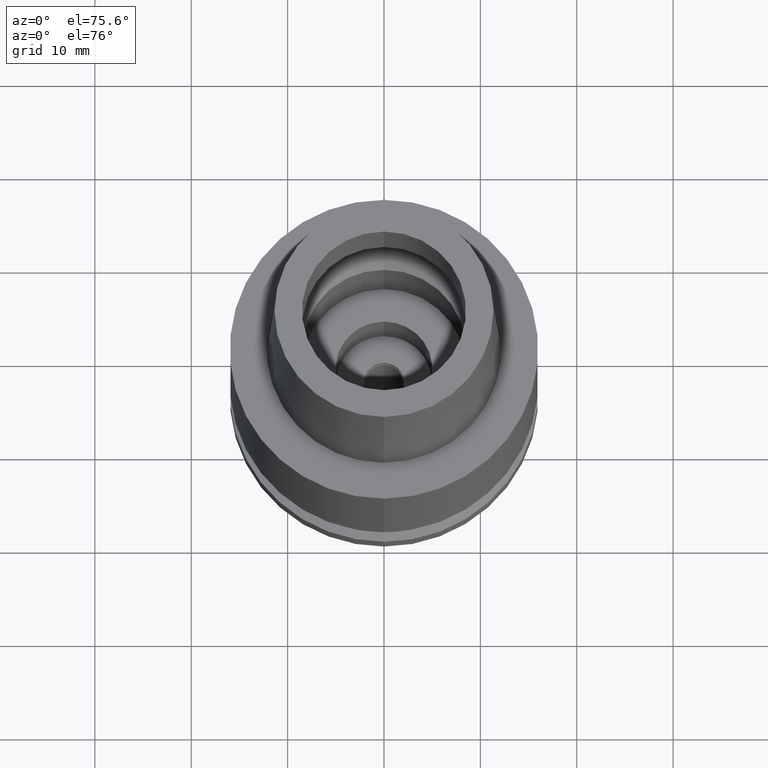
[diagram: clean part render]
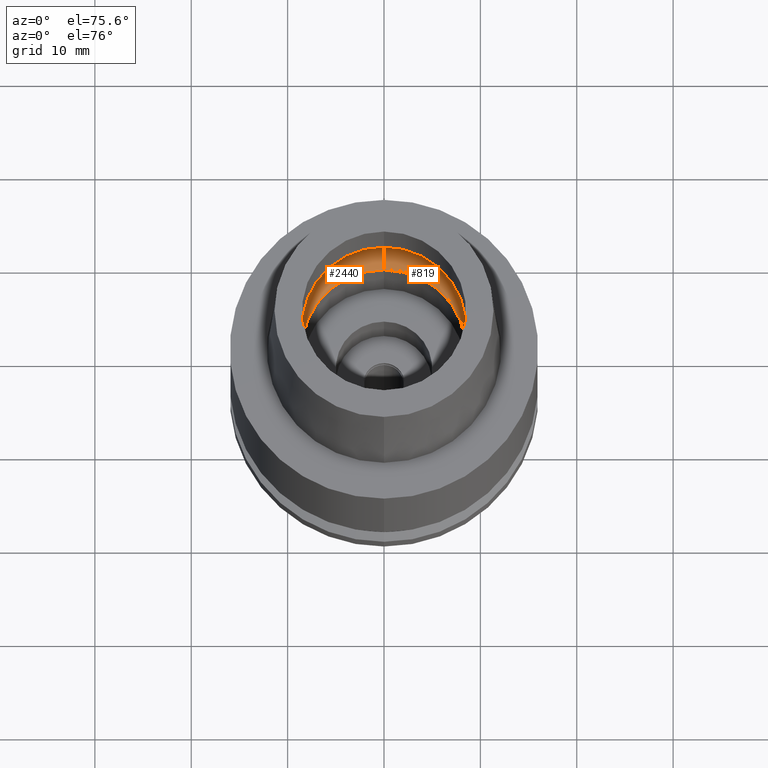
[diagram: same view with one multi-face feature highlighted, each face labeled with its STEP entity id]
A machine part, auxiliary view. The highlighted faces form ONE feature: a constant-radius fillet chain: 2 tangent blend faces with common blend radius 4 mm. The faces share edges in the B-rep.
Their STEP definitions:
[1] entity #2440 (Torus):
#63 = VERTEX_POINT ( 'NONE', #1687 ) ;
#132 = ORIENTED_EDGE ( 'NONE', *, *, #910, .F. ) ;
#196 = DIRECTION ( 'NONE',  ( 0.0000000000000000000, 0.0000000000000000000, -1.000000000000000000 ) ) ;
#283 = EDGE_CURVE ( 'NONE', #63, #330, #1831, .T. ) ;
#330 = VERTEX_POINT ( 'NONE', #734 ) ;
#356 = AXIS2_PLACEMENT_3D ( 'NONE', #1430, #196, #802 ) ;
#516 = CARTESIAN_POINT ( 'NONE',  ( 0.0000000000000000000, 10.25000000000000000, 3.357000000000000206 ) ) ;
#617 = DIRECTION ( 'NONE',  ( 0.0000000000000000000, 1.000000000000000000, 0.0000000000000000000 ) ) ;
#643 = EDGE_LOOP ( 'NONE', ( #1865, #1078, #132, #1580 ) ) ;
#690 = DIRECTION ( 'NONE',  ( 0.0000000000000000000, 0.0000000000000000000, 1.000000000000000000 ) ) ;
#717 = DIRECTION ( 'NONE',  ( -1.000000000000000000, 0.0000000000000000000, 0.0000000000000000000 ) ) ;
#734 = CARTESIAN_POINT ( 'NONE',  ( 0.0000000000000000000, -10.25000000000000000, 3.357000000000000206 ) ) ;
#802 = DIRECTION ( 'NONE',  ( 0.0000000000000000000, -1.000000000000000000, 0.0000000000000000000 ) ) ;
#813 = DIRECTION ( 'NONE',  ( 0.0000000000000000000, 0.0000000000000000000, 1.000000000000000000 ) ) ;
#834 = EDGE_CURVE ( 'NONE', #330, #1949, #1709, .T. ) ;
#910 = EDGE_CURVE ( 'NONE', #1824, #63, #2267, .T. ) ;
#974 = CARTESIAN_POINT ( 'NONE',  ( 0.0000000000000000000, 6.250000000000000000, 3.357000000000000206 ) ) ;
#1078 = ORIENTED_EDGE ( 'NONE', *, *, #283, .F. ) ;
#1324 = DIRECTION ( 'NONE',  ( 0.0000000000000000000, -0.5624999999999932276, -0.8267972847076892062 ) ) ;
#1338 = FACE_OUTER_BOUND ( 'NONE', #643, .T. ) ;
#1400 = DIRECTION ( 'NONE',  ( 0.0000000000000000000, 0.5624999999999932276, -0.8267972847076892062 ) ) ;
#1430 = CARTESIAN_POINT ( 'NONE',  ( 0.0000000000000000000, 0.0000000000000000000, 3.357000000000000206 ) ) ;
#1486 = EDGE_CURVE ( 'NONE', #1824, #1949, #2406, .T. ) ;
#1510 = CARTESIAN_POINT ( 'NONE',  ( 0.0000000000000000000, 8.500000000000000000, 0.04981086116930000252 ) ) ;
#1555 = CARTESIAN_POINT ( 'NONE',  ( 0.0000000000000000000, -6.250000000000000000, 3.357000000000000206 ) ) ;
#1580 = ORIENTED_EDGE ( 'NONE', *, *, #1486, .T. ) ;
#1633 = DIRECTION ( 'NONE',  ( 1.000000000000000000, 0.0000000000000000000, 0.0000000000000000000 ) ) ;
#1687 = CARTESIAN_POINT ( 'NONE',  ( 0.0000000000000000000, -8.500000000000000000, 0.04981086116927999768 ) ) ;
#1709 = CIRCLE ( 'NONE', #356, 10.25000000000000000 ) ;
#1735 = CARTESIAN_POINT ( 'NONE',  ( 0.0000000000000000000, 0.0000000000000000000, 3.357000000000000206 ) ) ;
#1824 = VERTEX_POINT ( 'NONE', #1510 ) ;
#1831 = CIRCLE ( 'NONE', #2683, 3.999999999999999112 ) ;
#1865 = ORIENTED_EDGE ( 'NONE', *, *, #834, .F. ) ;
#1949 = VERTEX_POINT ( 'NONE', #516 ) ;
#1976 = AXIS2_PLACEMENT_3D ( 'NONE', #974, #1633, #1400 ) ;
#2118 = TOROIDAL_SURFACE ( 'NONE', #2206, 6.250000000000000000, 4.000000000000000000 ) ;
#2192 = DIRECTION ( 'NONE',  ( 0.0000000000000000000, 1.000000000000000000, 0.0000000000000000000 ) ) ;
#2206 = AXIS2_PLACEMENT_3D ( 'NONE', #1735, #690, #2192 ) ;
#2266 = CARTESIAN_POINT ( 'NONE',  ( 0.0000000000000000000, 0.0000000000000000000, 0.04981086116927999768 ) ) ;
#2267 = CIRCLE ( 'NONE', #2310, 8.500000000000000000 ) ;
#2310 = AXIS2_PLACEMENT_3D ( 'NONE', #2266, #813, #617 ) ;
#2406 = CIRCLE ( 'NONE', #1976, 3.999999999999999112 ) ;
#2440 = ADVANCED_FACE ( 'NONE', ( #1338 ), #2118, .F. ) ;
#2683 = AXIS2_PLACEMENT_3D ( 'NONE', #1555, #717, #1324 ) ;
[2] entity #819 (Torus):
#14 = FACE_OUTER_BOUND ( 'NONE', #742, .T. ) ;
#33 = DIRECTION ( 'NONE',  ( 0.0000000000000000000, 1.000000000000000000, 0.0000000000000000000 ) ) ;
#63 = VERTEX_POINT ( 'NONE', #1687 ) ;
#117 = ORIENTED_EDGE ( 'NONE', *, *, #1486, .F. ) ;
#224 = AXIS2_PLACEMENT_3D ( 'NONE', #619, #2281, #33 ) ;
#283 = EDGE_CURVE ( 'NONE', #63, #330, #1831, .T. ) ;
#289 = CIRCLE ( 'NONE', #1688, 8.500000000000000000 ) ;
#330 = VERTEX_POINT ( 'NONE', #734 ) ;
#397 = AXIS2_PLACEMENT_3D ( 'NONE', #1676, #2665, #2280 ) ;
#429 = CARTESIAN_POINT ( 'NONE',  ( 0.0000000000000000000, 0.0000000000000000000, 0.04981086116927999768 ) ) ;
#498 = ORIENTED_EDGE ( 'NONE', *, *, #884, .F. ) ;
#516 = CARTESIAN_POINT ( 'NONE',  ( 0.0000000000000000000, 10.25000000000000000, 3.357000000000000206 ) ) ;
#619 = CARTESIAN_POINT ( 'NONE',  ( 0.0000000000000000000, 0.0000000000000000000, 3.357000000000000206 ) ) ;
#717 = DIRECTION ( 'NONE',  ( -1.000000000000000000, 0.0000000000000000000, 0.0000000000000000000 ) ) ;
#734 = CARTESIAN_POINT ( 'NONE',  ( 0.0000000000000000000, -10.25000000000000000, 3.357000000000000206 ) ) ;
#742 = EDGE_LOOP ( 'NONE', ( #1103, #761, #498, #117 ) ) ;
#761 = ORIENTED_EDGE ( 'NONE', *, *, #283, .T. ) ;
#819 = ADVANCED_FACE ( 'NONE', ( #14 ), #1538, .F. ) ;
#884 = EDGE_CURVE ( 'NONE', #1949, #330, #1140, .T. ) ;
#974 = CARTESIAN_POINT ( 'NONE',  ( 0.0000000000000000000, 6.250000000000000000, 3.357000000000000206 ) ) ;
#1103 = ORIENTED_EDGE ( 'NONE', *, *, #2391, .F. ) ;
#1140 = CIRCLE ( 'NONE', #397, 10.25000000000000000 ) ;
#1272 = DIRECTION ( 'NONE',  ( 0.0000000000000000000, 0.0000000000000000000, 1.000000000000000000 ) ) ;
#1324 = DIRECTION ( 'NONE',  ( 0.0000000000000000000, -0.5624999999999932276, -0.8267972847076892062 ) ) ;
#1400 = DIRECTION ( 'NONE',  ( 0.0000000000000000000, 0.5624999999999932276, -0.8267972847076892062 ) ) ;
#1486 = EDGE_CURVE ( 'NONE', #1824, #1949, #2406, .T. ) ;
#1510 = CARTESIAN_POINT ( 'NONE',  ( 0.0000000000000000000, 8.500000000000000000, 0.04981086116930000252 ) ) ;
#1538 = TOROIDAL_SURFACE ( 'NONE', #224, 6.250000000000000000, 4.000000000000000000 ) ;
#1555 = CARTESIAN_POINT ( 'NONE',  ( 0.0000000000000000000, -6.250000000000000000, 3.357000000000000206 ) ) ;
#1633 = DIRECTION ( 'NONE',  ( 1.000000000000000000, 0.0000000000000000000, 0.0000000000000000000 ) ) ;
#1676 = CARTESIAN_POINT ( 'NONE',  ( 0.0000000000000000000, 0.0000000000000000000, 3.357000000000000206 ) ) ;
#1687 = CARTESIAN_POINT ( 'NONE',  ( 0.0000000000000000000, -8.500000000000000000, 0.04981086116927999768 ) ) ;
#1688 = AXIS2_PLACEMENT_3D ( 'NONE', #429, #1272, #2095 ) ;
#1824 = VERTEX_POINT ( 'NONE', #1510 ) ;
#1831 = CIRCLE ( 'NONE', #2683, 3.999999999999999112 ) ;
#1949 = VERTEX_POINT ( 'NONE', #516 ) ;
#1976 = AXIS2_PLACEMENT_3D ( 'NONE', #974, #1633, #1400 ) ;
#2095 = DIRECTION ( 'NONE',  ( 0.0000000000000000000, -1.000000000000000000, 0.0000000000000000000 ) ) ;
#2280 = DIRECTION ( 'NONE',  ( 0.0000000000000000000, 1.000000000000000000, 0.0000000000000000000 ) ) ;
#2281 = DIRECTION ( 'NONE',  ( 0.0000000000000000000, 0.0000000000000000000, 1.000000000000000000 ) ) ;
#2391 = EDGE_CURVE ( 'NONE', #63, #1824, #289, .T. ) ;
#2406 = CIRCLE ( 'NONE', #1976, 3.999999999999999112 ) ;
#2665 = DIRECTION ( 'NONE',  ( 0.0000000000000000000, 0.0000000000000000000, -1.000000000000000000 ) ) ;
#2683 = AXIS2_PLACEMENT_3D ( 'NONE', #1555, #717, #1324 ) ;